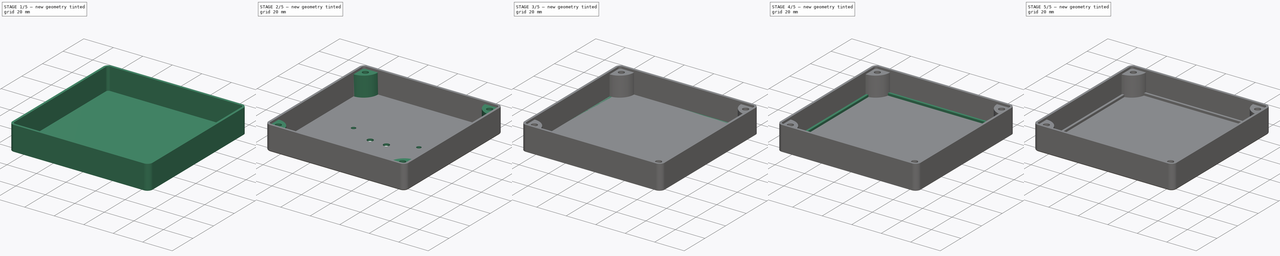
[diagram: build sequence overview — one tinted view per stage of 5, left to right]
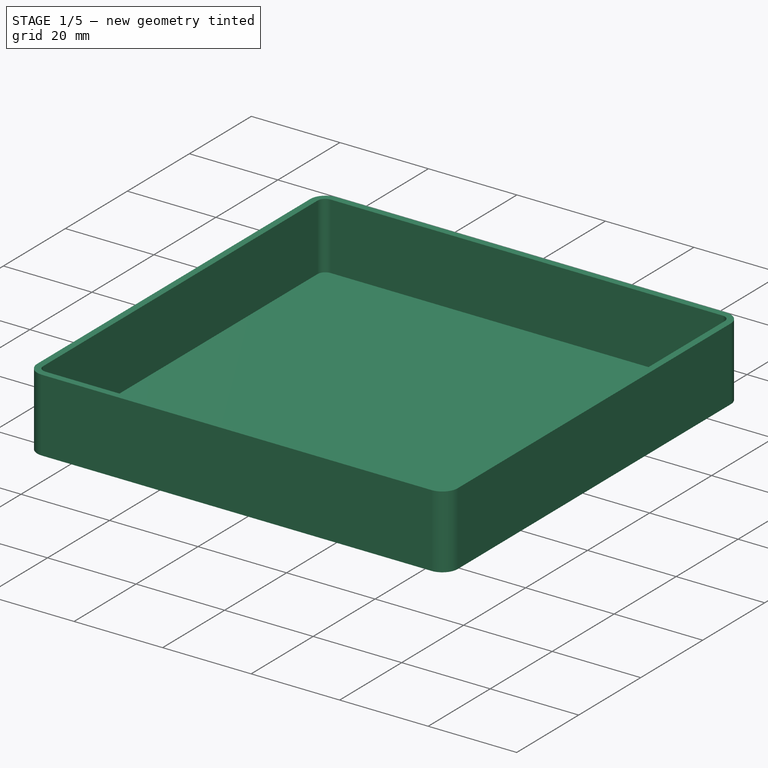
[diagram: stage 1 of 5 — iso view after this stage's code; geometry added in this stage tinted green]
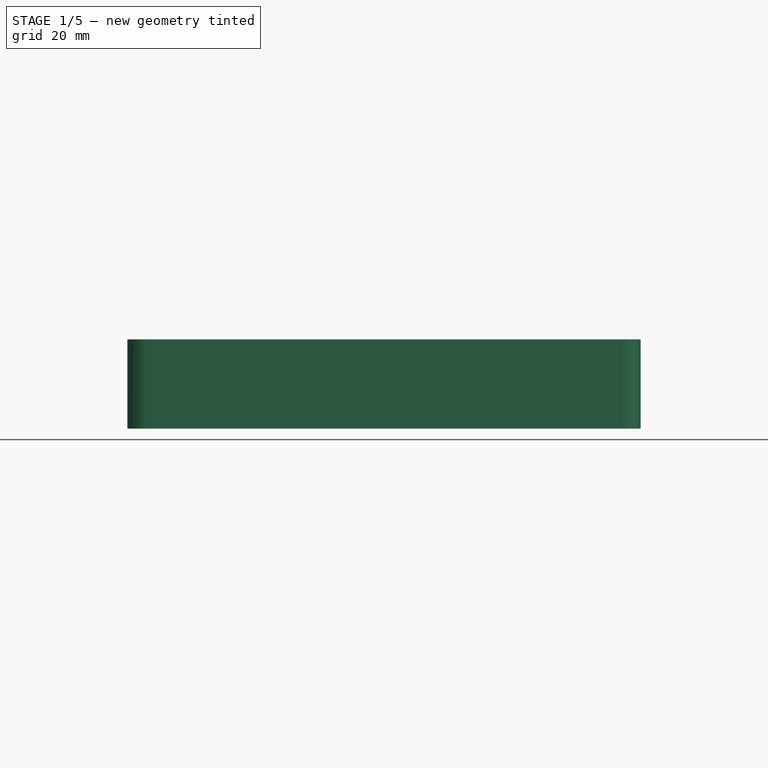
[diagram: stage 1 of 5 — front view after this stage's code; geometry added in this stage tinted green]
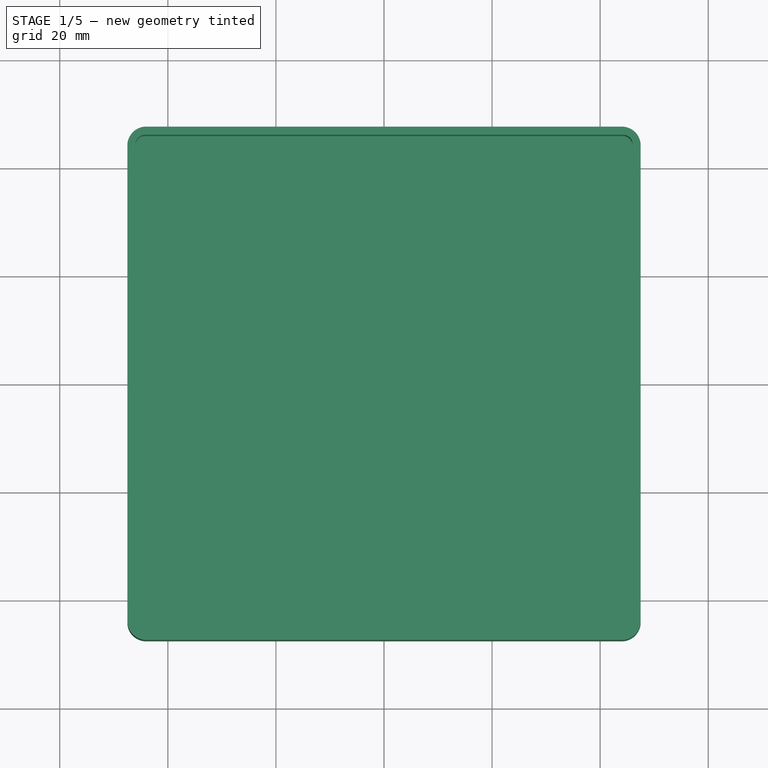
[diagram: stage 1 of 5 — top view after this stage's code; geometry added in this stage tinted green]
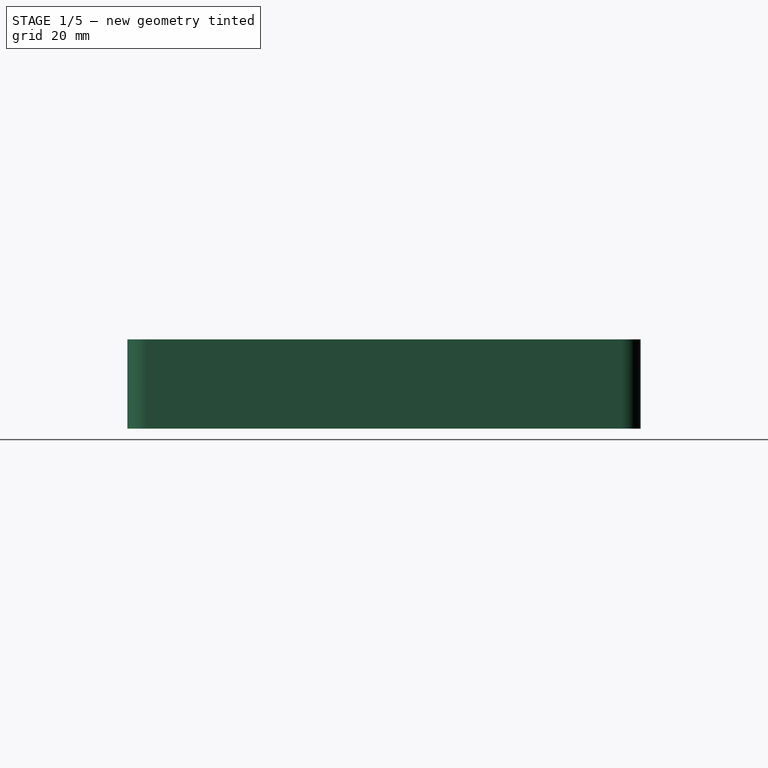
[diagram: stage 1 of 5 — right view after this stage's code; geometry added in this stage tinted green]
FCSTD DOCUMENT  (FreeCAD 1.0R39109 (Git))
Label: Key4_Base_Project_Box_Simple_New
License: All rights reserved
LicenseURL: http://en.wikipedia.org/wiki/All_rights_reserved
objects: Sketcher::SketchObject×11, PartDesign::Pad×7, PartDesign::Pocket×6, PartDesign::Mirrored×6, Part::Part2DObjectPython×4, PartDesign::MultiTransform×3, PartDesign::Body×3, PartDesign::Fillet×2, App::Part×2, Spreadsheet::Sheet×1, PartDesign::Chamfer×1
note: 95 computed .brp shape members not serialized (recipe doc carries the construction recipe); baked Part::Feature solids carry a one-line shape summary decoded from their .brp

FEATURE [Spreadsheet::Sheet] Spreadsheet  label="p"
  cells = A1='box_outer_width; B1(box_outer_width)=95; A2='box_outer_length; B2(box_outer_length)=95; A3='box_outer_depth; B3(box_outer_depth)=16.5; A5='box_inner_width; B5(box_inner_width)==B1 - B12 * 2; C5='Calculated; A6='box_inner_length; B6(box_inner_length)==B2 - B12 * 2; C6='Calculated; A7='box_inner_depth; B7(box_inner_depth)==B3 - B12; C7='Calculated; A9='box_outer_radius; B9(box_outer_radius)==B12 + 2; C9='Calculated; A10='box_inner_radius; B10(box_inner_radius)==B9 / 2; C10='Calculated; A12='box_wall_thickness; B12(box_wall_thickness)=1.5; A13='box_wall_clearance; B13(box_wall_clearance)==B12 * 0.2; C13='Calculated 20%; A15='lug_insert_diameter; B15(lug_insert_diameter)=3.9; A16='lug_depth; B16(lug_depth)==B7 - B12; A17='lug_outer_radius; B17(lug_outer_radius)==B15 * 2.5; A19='face_fillet; B19(face_fillet)=1; A21='lid_ridge_size; B21(lid_ridge_size)=1.5; A22='lid_screw_diameter; B22(lid_screw_diameter)=3; A23='lid_screw_chamfer; B23(lid_screw_chamfer)=1.98
FEATURE [Sketcher::SketchObject] Sketch  label="Main Body Sketch"
  ArcFitTolerance = 0
  AttachmentSupport = -> [XY_Plane001]
  FullyConstrained = true
  MakeInternals = false
  MapMode = 5
  expr: Constraints[16] = <<p>>.box_outer_radius
  expr: Constraints[17] = <<p>>.box_outer_width / 2
  expr: Constraints[18] = <<p>>.box_outer_length / 2
  sketch-geometry (8):
    g0: LineSegment StartX=-44 StartY=47.5 StartZ=0 EndX=44 EndY=47.5 EndZ=0
    g1: LineSegment StartX=47.5 StartY=44 StartZ=0 EndX=47.5 EndY=-44 EndZ=0
    g2: LineSegment StartX=44 StartY=-47.5 StartZ=0 EndX=-44 EndY=-47.5 EndZ=0
    g3: LineSegment StartX=-47.5 StartY=-44 StartZ=0 EndX=-47.5 EndY=44 EndZ=0
    g4: ArcOfCircle CenterX=-44 CenterY=44 CenterZ=0 NormalX=0 NormalY=0 NormalZ=1 AngleXU=0 Radius=3.5 StartAngle=1.5708 EndAngle=3.14159
    g5: ArcOfCircle CenterX=44 CenterY=44 CenterZ=0 NormalX=0 NormalY=0 NormalZ=1 AngleXU=0 Radius=3.5 StartAngle=1.877e-13 EndAngle=1.5708
    g6: ArcOfCircle CenterX=44 CenterY=-44 CenterZ=0 NormalX=0 NormalY=0 NormalZ=1 AngleXU=0 Radius=3.5 StartAngle=4.71239 EndAngle=6.28319
    g7: ArcOfCircle CenterX=-44 CenterY=-44 CenterZ=0 NormalX=0 NormalY=0 NormalZ=1 AngleXU=0 Radius=3.5 StartAngle=3.14159 EndAngle=4.71239
  constraints (19):
    c: Horizontal(g0)
    c: Horizontal(g2)
    c: Vertical(g1)
    c: Vertical(g3)
    c: Tangent(g3,g4) = 1.5708
    c: Tangent(g0,g4) = 1.5708
    c: Tangent(g0,g5) = 1.5708
    c: Tangent(g1,g5) = 1.5708
    c: Tangent(g1,g6) = 1.5708
    c: Tangent(g2,g6) = 1.5708
    c: Tangent(g2,g7) = 1.5708
    c: Tangent(g3,g7) = 1.5708
    c: Symmetric(g5,g7,g-1)
    c: Equal(g6,g7)
    c: Equal(g7,g4)
    c: Equal(g4,g5)
    c: Radius(g5) = 3.5
    c: DistanceX(g3,g-1) = 47.5
    c: DistanceY(g-1,g0) = 47.5
FEATURE [PartDesign::Pad] Pad  label="Box Outer Body"
  Direction = (0,0,1)
  Length = 16.5
  Length2 = 10
  Profile = -> Sketch
  ReferenceAxis = -> Sketch [N_Axis]
  Suppressed = false
  Type = 0
  expr: Length = <<p>>.box_outer_depth
FEATURE [Sketcher::SketchObject] Sketch001  label="Inner Body Sketch"
  ArcFitTolerance = 0
  AttachmentSupport = -> [Pad]
  FullyConstrained = true
  MakeInternals = false
  MapMode = 5
  Placement = pos=(0,0,16.5) rot=(0,0,1;0rad)
  expr: Constraints[16] = <<p>>.box_inner_width / 2
  expr: Constraints[17] = <<p>>.box_inner_length / 2
  expr: Constraints[18] = <<p>>.box_inner_radius
  sketch-geometry (8):
    g0: LineSegment StartX=-44.25 StartY=46 StartZ=0 EndX=44.25 EndY=46 EndZ=0
    g1: LineSegment StartX=46 StartY=44.25 StartZ=0 EndX=46 EndY=-44.25 EndZ=0
    g2: LineSegment StartX=44.25 StartY=-46 StartZ=0 EndX=-44.25 EndY=-46 EndZ=0
    g3: LineSegment StartX=-46 StartY=-44.25 StartZ=0 EndX=-46 EndY=44.25 EndZ=0
    g4: ArcOfCircle CenterX=-44.25 CenterY=44.25 CenterZ=0 NormalX=0 NormalY=0 NormalZ=1 AngleXU=0 Radius=1.75 StartAngle=1.5708 EndAngle=3.14159
    g5: ArcOfCircle CenterX=44.25 CenterY=44.25 CenterZ=0 NormalX=0 NormalY=0 NormalZ=1 AngleXU=0 Radius=1.75 StartAngle=5.5244e-12 EndAngle=1.5708
    g6: ArcOfCircle CenterX=44.25 CenterY=-44.25 CenterZ=0 NormalX=0 NormalY=0 NormalZ=1 AngleXU=0 Radius=1.75 StartAngle=4.71239 EndAngle=6.28319
    g7: ArcOfCircle CenterX=-44.25 CenterY=-44.25 CenterZ=0 NormalX=0 NormalY=0 NormalZ=1 AngleXU=0 Radius=1.75 StartAngle=3.14159 EndAngle=4.71239
  constraints (19):
    c: Horizontal(g0)
    c: Horizontal(g2)
    c: Vertical(g1)
    c: Vertical(g3)
    c: Tangent(g3,g4) = 1.5708
    c: Tangent(g0,g4) = 1.5708
    c: Tangent(g0,g5) = 1.5708
    c: Tangent(g1,g5) = 1.5708
    c: Tangent(g1,g6) = 1.5708
    c: Tangent(g2,g6) = 1.5708
    c: Tangent(g2,g7) = 1.5708
    c: Tangent(g3,g7) = 1.5708
    c: Equal(g4,g5)
    c: Equal(g5,g6)
    c: Equal(g6,g7)
    c: Symmetric(g5,g7,g-1)
    c: DistanceX(g3,g-1) = 46
    c: DistanceY(g-1,g0) = 46
    c: Radius(g5) = 1.75
FEATURE [PartDesign::Pocket] Pocket  label="Box Inner Pocket"
  BaseFeature = -> Pad
  Direction = (0,0,-1)
  Length = 15
  Length2 = 5
  Profile = -> Sketch001
  ReferenceAxis = -> Sketch001 [N_Axis]
  Suppressed = false
  Type = 0
  expr: Length = <<p>>.box_inner_depth
FEATURE [PartDesign::Body] Body  label="Main Box"
  AllowCompound = false
  Group = -> [Sketch,Pad,Sketch001,Pocket,Sketch002,Pad001,MultiTransform,Mirrored,Mirrored001,Fillet,Sketch008,Pocket003,Sketch009,Pocket004,Clone2D,Pocket005]
  Origin = -> Origin001
  Tip = -> Pocket005
FEATURE [App::Part] Part  label="Box"
  Group = -> [Body]
  Origin = -> Origin
FEATURE [Sketcher::SketchObject] Sketch010
  ArcFitTolerance = 1e-06
  AttachmentOffset = pos=(0,0,0.5) rot=(0,0,1;0rad)
  AttachmentSupport = -> [XY_Plane004]
  FullyConstrained = true
  MakeInternals = false
  MapMode = 5
  Placement = pos=(0,0,0.5) rot=(0,0,1;0rad)
  sketch-geometry (4):
    g0: LineSegment StartX=42.289 StartY=40.003 StartZ=0 EndX=-42.075 EndY=40.003 EndZ=0
    g1: LineSegment StartX=-42.075 StartY=40.003 StartZ=0 EndX=-42.075 EndY=13.495 EndZ=0
    g2: LineSegment StartX=-42.075 StartY=13.495 StartZ=0 EndX=42.289 EndY=13.495 EndZ=0
    g3: LineSegment StartX=42.289 StartY=13.495 StartZ=0 EndX=42.289 EndY=40.003 EndZ=0
  constraints (12):
    c: Coincident(g0,g1)
    c: Coincident(g1,g2)
    c: Coincident(g2,g3)
    c: Coincident(g3,g0)
    c: Horizontal(g0)
    c: Horizontal(g2)
    c: Vertical(g1)
    c: Vertical(g3)
    c: DistanceY(g3,g3) = 26.508
    c: DistanceX(g2,g2) = 84.364
    c: DistanceX(g-1,g2) = 42.289
    c: DistanceY(g-1,g2) = 13.495
FEATURE [PartDesign::Pad] Pad005
  Direction = (0,0,1)
  Length = 0.1
  Length2 = 10
  Profile = -> Sketch010
  ReferenceAxis = -> Sketch010 [N_Axis]
  Reversed = true
  Suppressed = false
  Type = 0
FEATURE [Part::Part2DObjectPython] ShapeString001  # Draft 2D object (typed FeaturePython)
  FontFile = <path>
  Fuse = false
  Justification = 4
  JustificationReference = 0
  KeepLeftMargin = false
  MakeFace = true
  ObliqueAngle = 0
  Placement = pos=(0,27,0) rot=(0,0,1;0rad)
  ScaleToSize = true
  Size = 24
  String = K7BIN
  Tracking = 0
FEATURE [Part::Part2DObjectPython] Clone2D001  label="ShapeString (2D)001"  # Draft 2D object (typed FeaturePython)
  Fuse = false
  Objects = -> [ShapeString001]
  Placement = pos=(0,27,0) rot=(0,0,1;0rad)
  Scale = (-1,1,1)
FEATURE [PartDesign::Pad] Pad006
  BaseFeature = -> Pad005
  Direction = (0,0,1)
  Length = 0.4
  Length2 = 10
  Profile = -> Clone2D001
  ReferenceAxis = -> Clone2D001 [N_Axis]
  Suppressed = false
  Type = 0
FEATURE [PartDesign::Body] Body002  label="K7BIN_Body"
  AllowCompound = false
  Group = -> [Sketch010,Pad005,Clone2D001,Pad006]
  Origin = -> Origin004
  Tip = -> Pad006
note: 2 file-system paths scrubbed to <path> (originals preserved in the JSON sidecar)
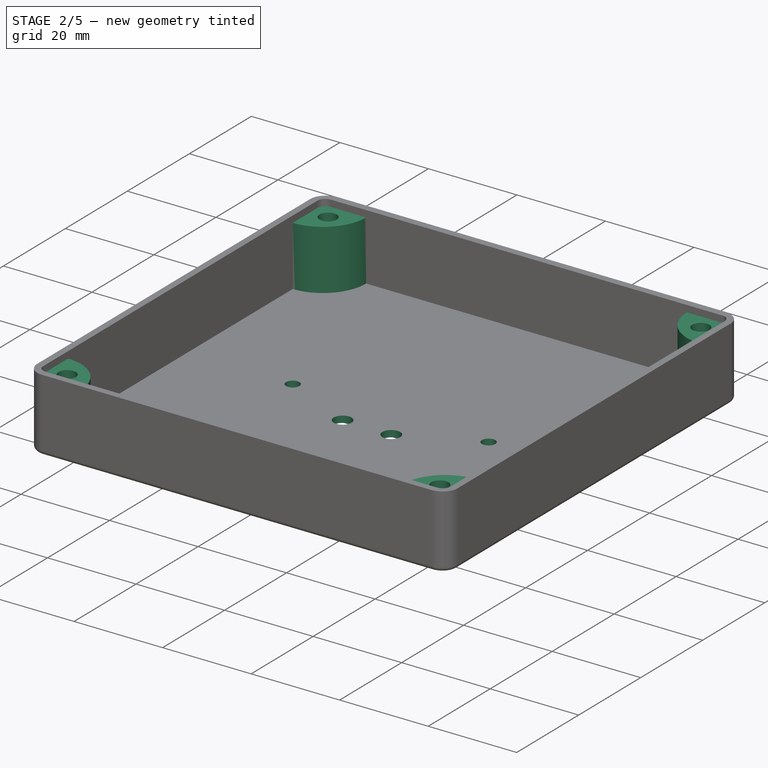
[diagram: stage 2 of 5 — iso view after this stage's code; geometry added in this stage tinted green]
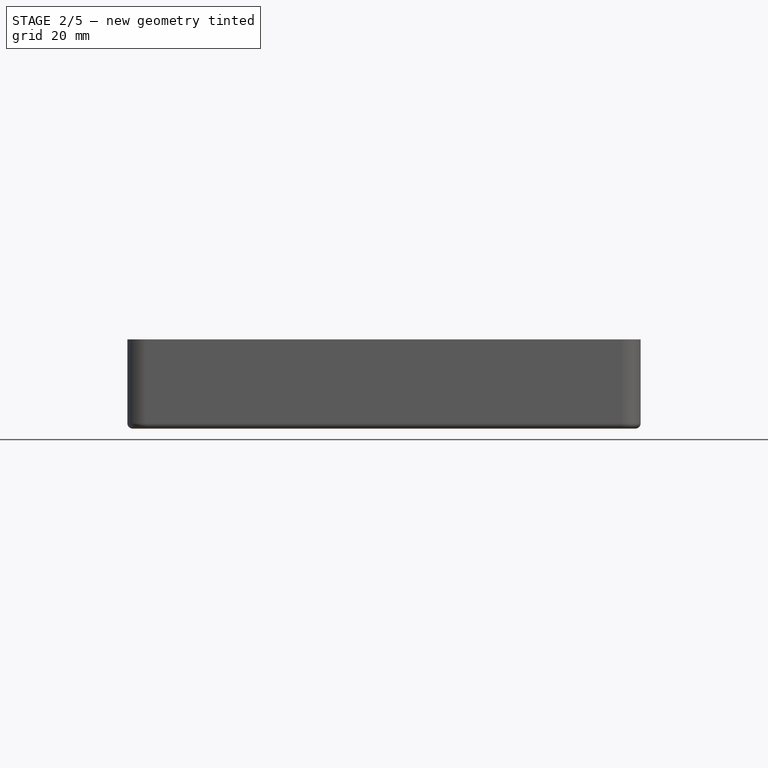
[diagram: stage 2 of 5 — front view after this stage's code; geometry added in this stage tinted green]
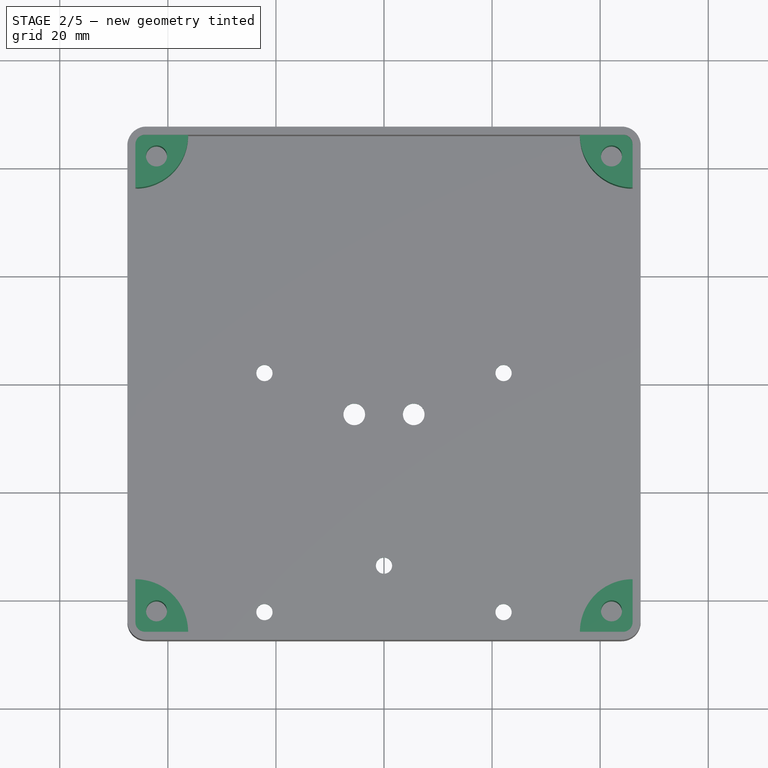
[diagram: stage 2 of 5 — top view after this stage's code; geometry added in this stage tinted green]
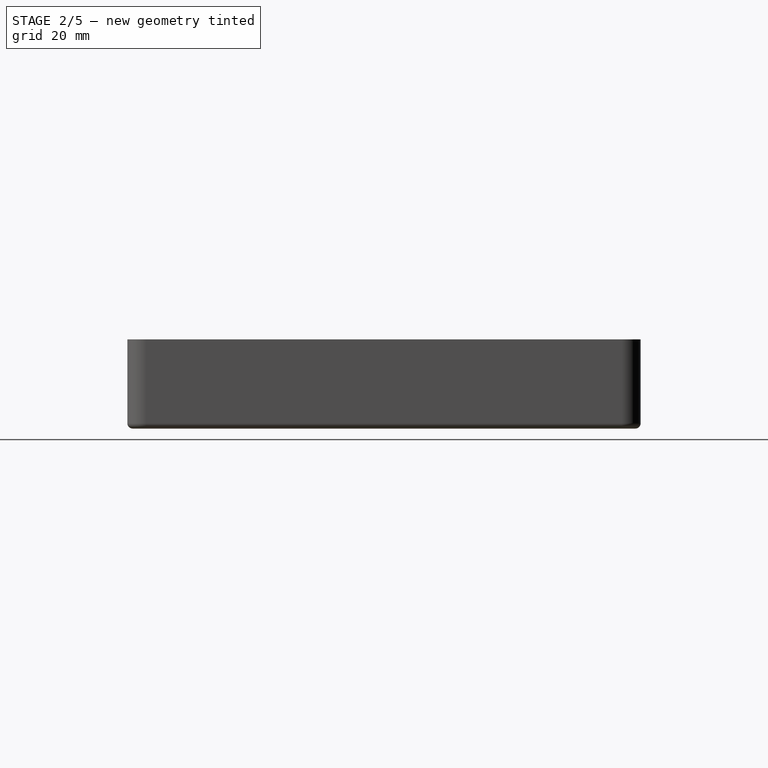
[diagram: stage 2 of 5 — right view after this stage's code; geometry added in this stage tinted green]
FEATURE [Sketcher::SketchObject] Sketch002  label="Lug Sketch"
  ArcFitTolerance = 0
  AttachmentSupport = -> [Pocket]
  FullyConstrained = true
  MakeInternals = false
  MapMode = 5
  Placement = pos=(0,0,1.5) rot=(0,0,1;0rad)
  expr: Constraints[10] = <<p>>.lug_insert_diameter
  expr: Constraints[11] = <<p>>.lug_insert_diameter
  expr: Constraints[6] = <<p>>.lug_outer_radius
  expr: Constraints[7] = <<p>>.box_inner_width / 2
  expr: Constraints[8] = <<p>>.box_inner_length / 2
  expr: Constraints[9] = <<p>>.lug_insert_diameter
  sketch-geometry (4):
    g0: LineSegment StartX=-46 StartY=36.25 StartZ=0 EndX=-46 EndY=46 EndZ=0
    g1: LineSegment StartX=-46 StartY=46 StartZ=0 EndX=-36.25 EndY=46 EndZ=0
    g2: ArcOfCircle CenterX=-46 CenterY=46 CenterZ=0 NormalX=0 NormalY=0 NormalZ=1 AngleXU=0 Radius=9.75 StartAngle=4.71239 EndAngle=6.28319
    g3: Circle CenterX=-42.1 CenterY=42.1 CenterZ=0 NormalX=0 NormalY=0 NormalZ=1 AngleXU=0 Radius=1.95
  constraints (12):
    c: Vertical(g0)
    c: Coincident(g0,g1)
    c: Horizontal(g1)
    c: Coincident(g2,g0)
    c: Coincident(g2,g1)
    c: Coincident(g2,g0)
    c: Radius(g2) = 9.75
    c: DistanceX(g0,g-1) = 46
    c: DistanceY(g-1,g0) = 46
    c: Diameter(g3) = 3.9
    c: DistanceX(g0,g3) = 3.9
    c: DistanceY(g3,g0) = 3.9
FEATURE [PartDesign::Pad] Pad001  label="Lug"
  BaseFeature = -> Pocket
  Direction = (0,0,1)
  Length = 13.5
  Length2 = 10
  Profile = -> Sketch002
  ReferenceAxis = -> Sketch002 [N_Axis]
  Suppressed = false
  Type = 0
  expr: Length = <<p>>.lug_depth
FEATURE [PartDesign::Mirrored] Mirrored
  MirrorPlane = -> Sketch002 [V_Axis]
  Suppressed = false
  TransformMode = 0
FEATURE [PartDesign::Mirrored] Mirrored001
  MirrorPlane = -> Sketch002 [H_Axis]
  Suppressed = false
  TransformMode = 0
FEATURE [PartDesign::MultiTransform] MultiTransform  label="Lugs Mirror"
  BaseFeature = -> Pad001
  Originals = -> [Pad001]
  Suppressed = false
  TransformMode = 0
  Transformations = -> [Mirrored,Mirrored001]
FEATURE [PartDesign::Fillet] Fillet
  Base = -> MultiTransform [Edge3,Edge9,Edge11,Edge12,Edge13,Edge14,Edge15,Edge6]
  BaseFeature = -> MultiTransform
  Radius = 1
  SupportTransform = false
  Suppressed = false
  UseAllEdges = false
  expr: Radius = Spreadsheet.face_fillet
FEATURE [PartDesign::Body] Body001  label="Main Lid"
  AllowCompound = false
  Group = -> [Sketch003,Pad002,Sketch004,Pad003,Sketch005,Pocket001,Sketch006,Pad004,MultiTransform001,Mirrored002,Mirrored003,Sketch007,Pocket002,MultiTransform002,Mirrored004,Mirrored005,Fillet001,Chamfer]
  Origin = -> Origin003
  Tip = -> Chamfer
FEATURE [App::Part] Part001  label="Lid"
  Group = -> [Body001]
  Origin = -> Origin002
FEATURE [Sketcher::SketchObject] Sketch008
  ArcFitTolerance = 0
  AttachmentSupport = -> [Fillet]
  FullyConstrained = true
  MakeInternals = false
  MapMode = 5
  Placement = pos=(0,0,1.5) rot=(0,0,1;0rad)
  expr: Constraints[20] = <<p>>.box_outer_length / 2 - 5.4
  expr: Constraints[7] = <<p>>.box_outer_width / 2 - 42
  expr: Constraints[8] = <<p>>.box_outer_width / 2 - 14
  sketch-geometry (7):
    g0: Circle CenterX=0 CenterY=-33.5 CenterZ=0 NormalX=0 NormalY=0 NormalZ=1 AngleXU=0 Radius=1.5
    g1: Circle CenterX=-5.5 CenterY=-5.5 CenterZ=0 NormalX=0 NormalY=0 NormalZ=1 AngleXU=0 Radius=2
    g2: Circle CenterX=5.5 CenterY=-5.5 CenterZ=0 NormalX=0 NormalY=0 NormalZ=1 AngleXU=0 Radius=2
    g3: Circle CenterX=-22.125 CenterY=2.15 CenterZ=0 NormalX=0 NormalY=0 NormalZ=1 AngleXU=0 Radius=1.5
    g4: Circle CenterX=-22.125 CenterY=-42.1 CenterZ=0 NormalX=0 NormalY=0 NormalZ=1 AngleXU=0 Radius=1.5
    g5: Circle CenterX=22.125 CenterY=-42.1 CenterZ=0 NormalX=0 NormalY=0 NormalZ=1 AngleXU=0 Radius=1.5
    g6: Circle CenterX=22.125 CenterY=2.15 CenterZ=0 NormalX=0 NormalY=0 NormalZ=1 AngleXU=0 Radius=1.5
  constraints (21):
    c: PointOnObject(g0,g-2)
    c: DistanceX(g1,g2) = 11
    c: DistanceX(g1,g-1) = 5.5
    c: Diameter(g2) = 4
    c: Diameter(g1) = 4
    c: Diameter(g0) = 3
    c: DistanceY(g1,g2) = 0
    c: DistanceY(g2,g-1) = 5.5
    c: DistanceY(g0,g-1) = 33.5
    c: Equal(g3,g6)
    c: Equal(g3,g5)
    c: Equal(g3,g4)
    c: Diameter(g3) = 3
    c: DistanceY(g3,g6) = 0
    c: DistanceY(g5,g4) = 0
    c: DistanceX(g6,g5) = 0
    c: DistanceX(g3,g4) = 0
    c: DistanceX(g3,g6) = 44.25
    c: DistanceY(g4,g3) = 44.25
    c: DistanceX(g3,g-1) = 22.125
    c: DistanceY(g4,g-1) = 42.1
FEATURE [PartDesign::Pocket] Pocket003
  BaseFeature = -> Fillet
  Direction = (0,0,-1)
  Length = 5
  Length2 = 5
  Profile = -> Sketch008
  ReferenceAxis = -> Sketch008 [N_Axis]
  Suppressed = false
  Type = 0
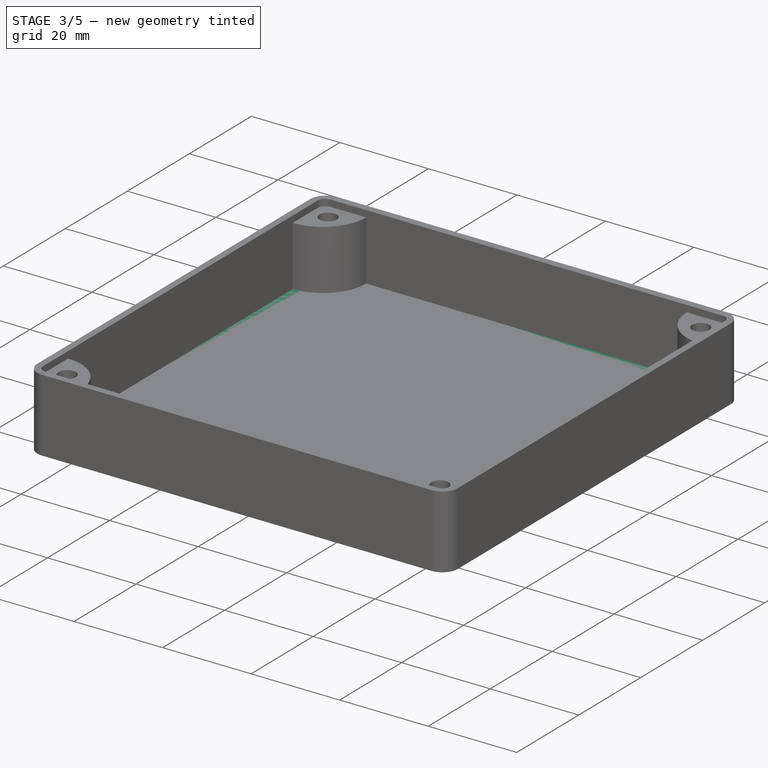
[diagram: stage 3 of 5 — iso view after this stage's code; geometry added in this stage tinted green]
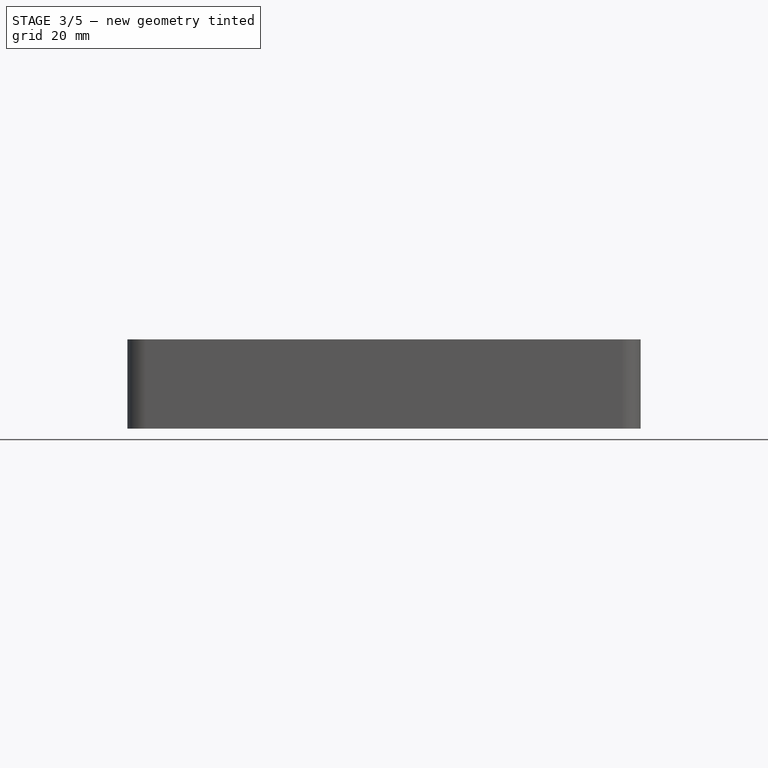
[diagram: stage 3 of 5 — front view after this stage's code; geometry added in this stage tinted green]
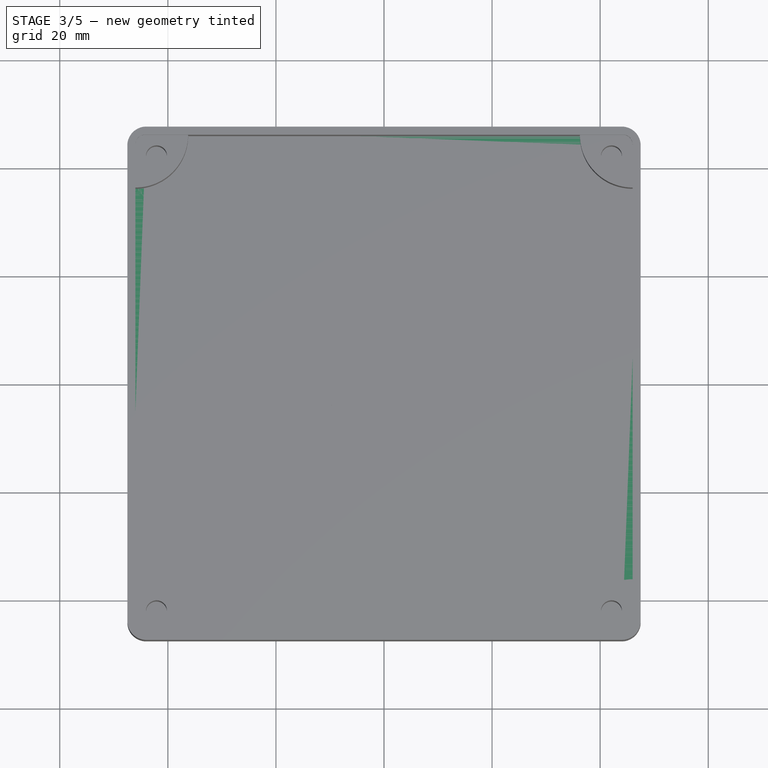
[diagram: stage 3 of 5 — top view after this stage's code; geometry added in this stage tinted green]
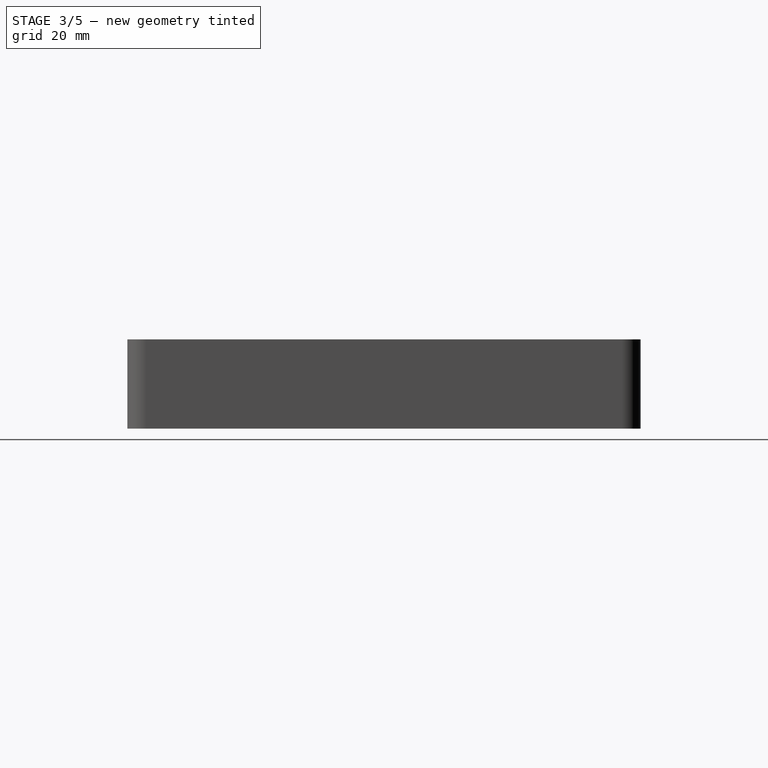
[diagram: stage 3 of 5 — right view after this stage's code; geometry added in this stage tinted green]
FEATURE [Sketcher::SketchObject] Sketch003  label="Main Lid Sketch"
  ArcFitTolerance = 0
  AttachmentSupport = -> [XY_Plane003]
  FullyConstrained = true
  MakeInternals = false
  MapMode = 5
  expr: Constraints[15] = <<p>>.box_outer_radius
  expr: Constraints[17] = <<p>>.box_outer_length / 2
  expr: Constraints[18] = <<p>>.box_outer_width / 2
  sketch-geometry (8):
    g0: LineSegment StartX=-44 StartY=47.5 StartZ=0 EndX=44 EndY=47.5 EndZ=0
    g1: LineSegment StartX=47.5 StartY=44 StartZ=0 EndX=47.5 EndY=-44 EndZ=0
    g2: LineSegment StartX=44 StartY=-47.5 StartZ=0 EndX=-44 EndY=-47.5 EndZ=0
    g3: LineSegment StartX=-47.5 StartY=-44 StartZ=0 EndX=-47.5 EndY=44 EndZ=0
    g4: ArcOfCircle CenterX=-44 CenterY=44 CenterZ=0 NormalX=0 NormalY=0 NormalZ=1 AngleXU=0 Radius=3.5 StartAngle=1.5708 EndAngle=3.14159
    g5: ArcOfCircle CenterX=44 CenterY=44 CenterZ=0 NormalX=0 NormalY=0 NormalZ=1 AngleXU=0 Radius=3.5 StartAngle=2.464e-13 EndAngle=1.5708
    g6: ArcOfCircle CenterX=44 CenterY=-44 CenterZ=0 NormalX=0 NormalY=0 NormalZ=1 AngleXU=0 Radius=3.5 StartAngle=4.71239 EndAngle=6.28319
    g7: ArcOfCircle CenterX=-44 CenterY=-44 CenterZ=0 NormalX=0 NormalY=0 NormalZ=1 AngleXU=0 Radius=3.5 StartAngle=3.14159 EndAngle=4.71239
  constraints (19):
    c: Horizontal(g0)
    c: Horizontal(g2)
    c: Vertical(g1)
    c: Vertical(g3)
    c: Tangent(g0,g4) = 1.5708
    c: Tangent(g3,g4) = 1.5708
    c: Tangent(g0,g5) = 1.5708
    c: Tangent(g1,g5) = 1.5708
    c: Tangent(g1,g6) = 1.5708
    c: Tangent(g2,g6) = 1.5708
    c: Tangent(g2,g7) = 1.5708
    c: Tangent(g3,g7) = 1.5708
    c: Equal(g4,g5)
    c: Equal(g5,g6)
    c: Equal(g6,g7)
    c: Radius(g5) = 3.5
    c: Symmetric(g4,g6,g-1)
    c: DistanceY(g-1,g0) = 47.5
    c: DistanceX(g3,g-1) = 47.5
FEATURE [PartDesign::Pad] Pad002  label="Main Outer Lid"
  Direction = (0,0,1)
  Length = 1.5
  Length2 = 10
  Profile = -> Sketch003
  ReferenceAxis = -> Sketch003 [N_Axis]
  Suppressed = false
  Type = 0
  expr: Length = <<p>>.box_wall_thickness
FEATURE [Sketcher::SketchObject] Sketch009
  ArcFitTolerance = 0
  AttachmentSupport = -> [Pocket003]
  FullyConstrained = true
  MakeInternals = false
  MapMode = 5
  Placement = pos=(0,0,1.5) rot=(0,0,1;0rad)
  expr: Constraints[5] = <<p>>.box_outer_length / 2 - 42
  sketch-geometry (2):
    g0: Circle CenterX=-5.5 CenterY=-5.5 CenterZ=0 NormalX=0 NormalY=0 NormalZ=1 AngleXU=0 Radius=4.5
    g1: Circle CenterX=5.5 CenterY=-5.5 CenterZ=0 NormalX=0 NormalY=0 NormalZ=1 AngleXU=0 Radius=4.5
  constraints (6):
    c: Equal(g1,g0)
    c: Diameter(g1) = 9
    c: DistanceY(g0,g1) = 0
    c: DistanceX(g0,g1) = 11
    c: DistanceX(g0,g-1) = 5.5
    c: DistanceY(g0,g-1) = 5.5
FEATURE [PartDesign::Pocket] Pocket004
  BaseFeature = -> Pocket003
  Direction = (0,0,-1)
  Length = 0.75
  Length2 = 5
  Profile = -> Sketch009
  ReferenceAxis = -> Sketch009 [N_Axis]
  Suppressed = false
  Type = 0
FEATURE [Part::Part2DObjectPython] ShapeString  # Draft 2D object (typed FeaturePython)
  FontFile = <path>
  Fuse = false
  Justification = 4
  JustificationReference = 0
  KeepLeftMargin = false
  MakeFace = true
  ObliqueAngle = 0
  Placement = pos=(0,27,0) rot=(0,0,1;0rad)
  ScaleToSize = true
  Size = 24
  String = K7BIN
  Tracking = 0
FEATURE [Part::Part2DObjectPython] Clone2D  label="ShapeString (2D)"  # Draft 2D object (typed FeaturePython)
  Fuse = false
  Objects = -> [ShapeString]
  Placement = pos=(0,27,0) rot=(0,0,1;0rad)
  Scale = (-1,1,1)
FEATURE [PartDesign::Pocket] Pocket005
  BaseFeature = -> Pocket004
  Direction = (0,0,-1)
  Length = 0.5
  Length2 = 5
  Profile = -> Clone2D
  ReferenceAxis = -> Clone2D [N_Axis]
  Reversed = true
  Suppressed = false
  Type = 0
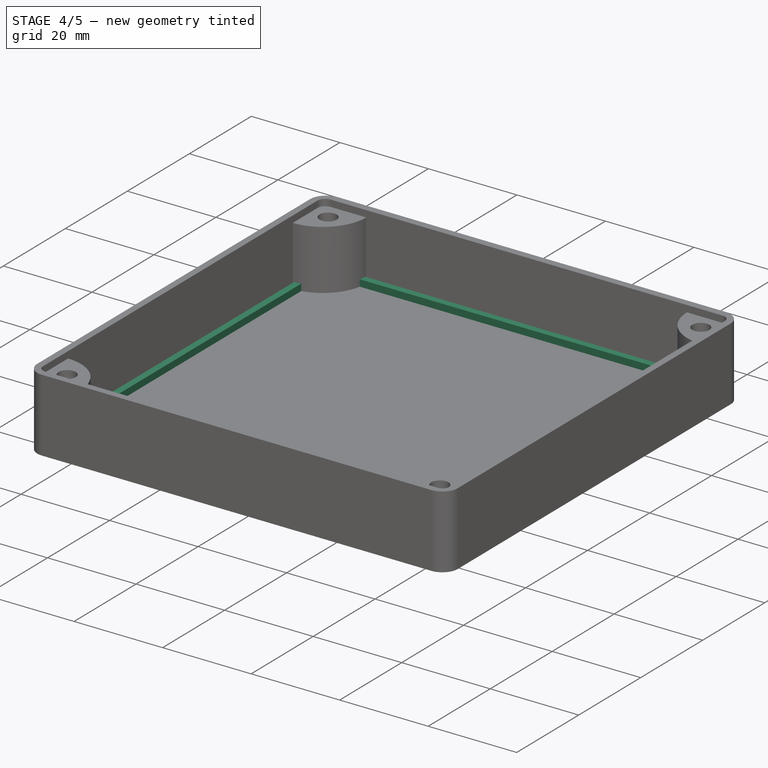
[diagram: stage 4 of 5 — iso view after this stage's code; geometry added in this stage tinted green]
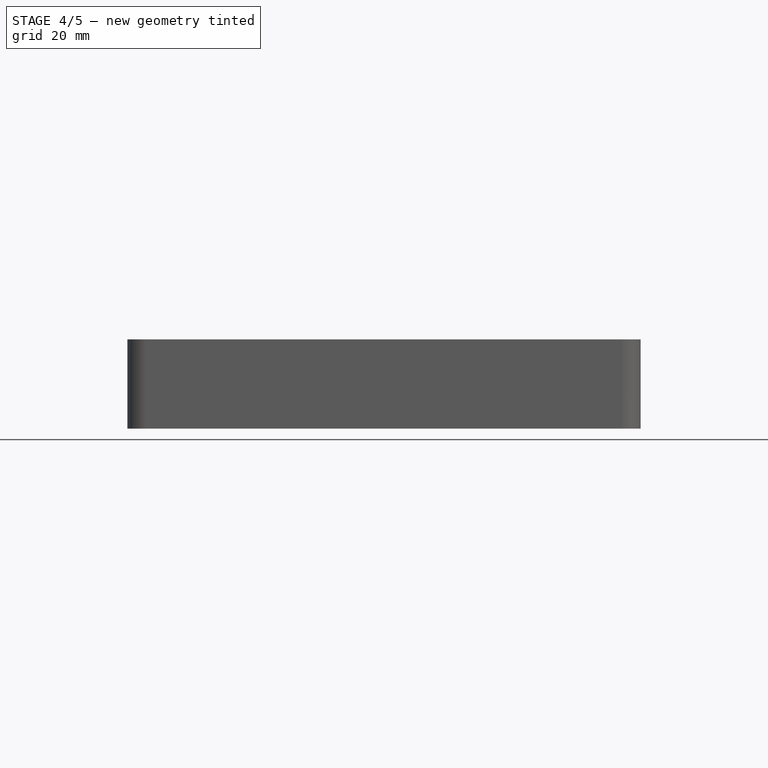
[diagram: stage 4 of 5 — front view after this stage's code; geometry added in this stage tinted green]
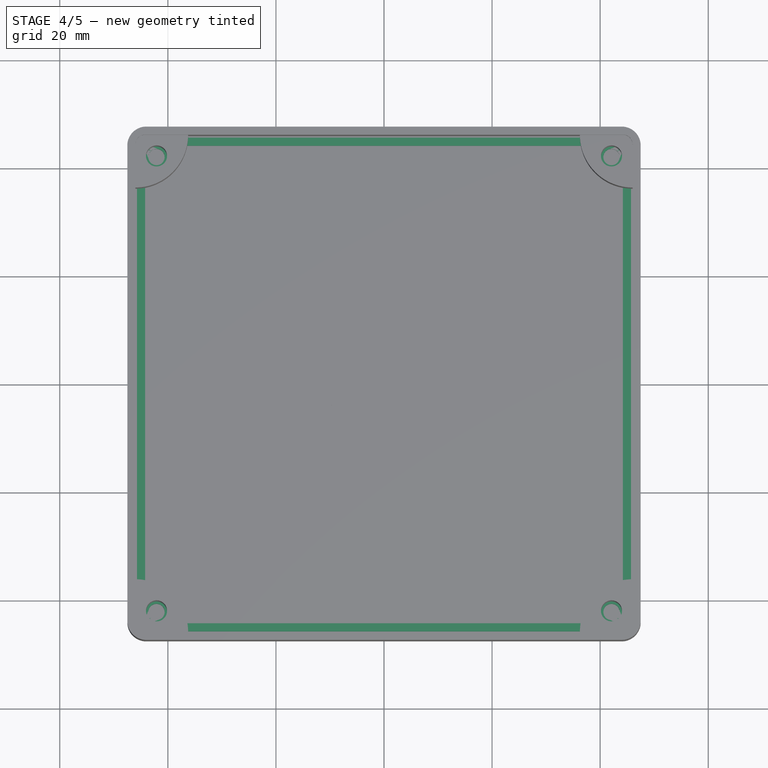
[diagram: stage 4 of 5 — top view after this stage's code; geometry added in this stage tinted green]
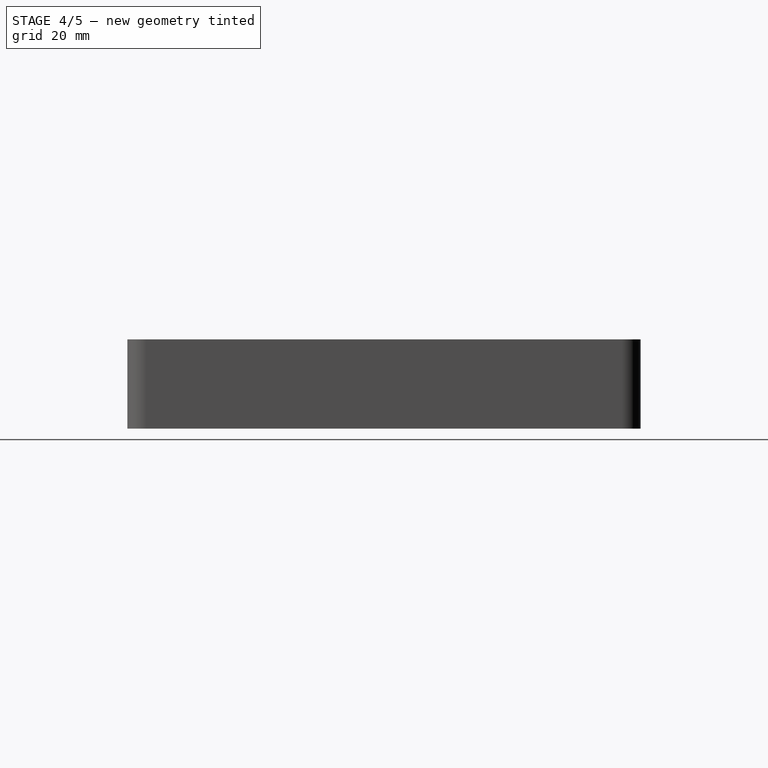
[diagram: stage 4 of 5 — right view after this stage's code; geometry added in this stage tinted green]
FEATURE [Sketcher::SketchObject] Sketch004  label="Main Inner Ring Sketch"
  ArcFitTolerance = 0
  AttachmentSupport = -> [Pad002]
  FullyConstrained = true
  MakeInternals = false
  MapMode = 5
  Placement = pos=(0,0,1.5) rot=(0,0,1;0rad)
  expr: Constraints[15] = <<p>>.box_inner_radius
  expr: Constraints[17] = <<p>>.box_inner_width / 2 - <<p>>.box_wall_clearance
  expr: Constraints[18] = <<p>>.box_inner_length / 2 - <<p>>.box_wall_clearance
  sketch-geometry (8):
    g0: LineSegment StartX=-43.95 StartY=45.7 StartZ=0 EndX=43.95 EndY=45.7 EndZ=0
    g1: LineSegment StartX=45.7 StartY=43.95 StartZ=0 EndX=45.7 EndY=-43.95 EndZ=0
    g2: LineSegment StartX=43.95 StartY=-45.7 StartZ=0 EndX=-43.95 EndY=-45.7 EndZ=0
    g3: LineSegment StartX=-45.7 StartY=-43.95 StartZ=0 EndX=-45.7 EndY=43.95 EndZ=0
    g4: ArcOfCircle CenterX=-43.95 CenterY=43.95 CenterZ=0 NormalX=0 NormalY=0 NormalZ=1 AngleXU=0 Radius=1.75 StartAngle=1.5708 EndAngle=3.14159
    g5: ArcOfCircle CenterX=43.95 CenterY=43.95 CenterZ=0 NormalX=0 NormalY=0 NormalZ=1 AngleXU=0 Radius=1.75 StartAngle=5.8636e-12 EndAngle=1.5708
    g6: ArcOfCircle CenterX=43.95 CenterY=-43.95 CenterZ=0 NormalX=0 NormalY=0 NormalZ=1 AngleXU=0 Radius=1.75 StartAngle=4.71239 EndAngle=6.28319
    g7: ArcOfCircle CenterX=-43.95 CenterY=-43.95 CenterZ=0 NormalX=0 NormalY=0 NormalZ=1 AngleXU=0 Radius=1.75 StartAngle=3.14159 EndAngle=4.71239
  constraints (19):
    c: Horizontal(g0)
    c: Horizontal(g2)
    c: Vertical(g1)
    c: Vertical(g3)
    c: Tangent(g3,g4) = 1.5708
    c: Tangent(g0,g4) = 1.5708
    c: Tangent(g0,g5) = 1.5708
    c: Tangent(g1,g5) = 1.5708
    c: Tangent(g1,g6) = 1.5708
    c: Tangent(g2,g6) = 1.5708
    c: Tangent(g2,g7) = 1.5708
    c: Tangent(g3,g7) = 1.5708
    c: Equal(g4,g5)
    c: Equal(g5,g6)
    c: Equal(g6,g7)
    c: Radius(g5) = 1.75
    c: Symmetric(g4,g6,g-1)
    c: DistanceX(g3,g-1) = 45.7
    c: DistanceY(g-1,g0) = 45.7
FEATURE [PartDesign::Pad] Pad003  label="Main Inner Ring"
  BaseFeature = -> Pad002
  Direction = (0,0,1)
  Length = 1.5
  Length2 = 10
  Profile = -> Sketch004
  ReferenceAxis = -> Sketch004 [N_Axis]
  Suppressed = false
  Type = 0
  expr: Length = Spreadsheet.lid_ridge_size
FEATURE [Sketcher::SketchObject] Sketch005  label="Main Ring Pocket Sketch"
  ArcFitTolerance = 0
  AttachmentSupport = -> [Pad003]
  FullyConstrained = true
  MakeInternals = false
  MapMode = 5
  Placement = pos=(0,0,3) rot=(0,0,1;0rad)
  expr: Constraints[15] = <<p>>.box_inner_radius / 2
  expr: Constraints[17] = <<p>>.box_inner_length / 2 - <<p>>.box_wall_clearance - Spreadsheet.lid_ridge_size
  expr: Constraints[18] = <<p>>.box_inner_width / 2 - <<p>>.box_wall_clearance - Spreadsheet.lid_ridge_size
  sketch-geometry (8):
    g0: LineSegment StartX=-43.325 StartY=44.2 StartZ=0 EndX=43.325 EndY=44.2 EndZ=0
    g1: LineSegment StartX=44.2 StartY=43.325 StartZ=0 EndX=44.2 EndY=-43.325 EndZ=0
    g2: LineSegment StartX=43.325 StartY=-44.2 StartZ=0 EndX=-43.325 EndY=-44.2 EndZ=0
    g3: LineSegment StartX=-44.2 StartY=-43.325 StartZ=0 EndX=-44.2 EndY=43.325 EndZ=0
    g4: ArcOfCircle CenterX=-43.325 CenterY=43.325 CenterZ=0 NormalX=0 NormalY=0 NormalZ=1 AngleXU=0 Radius=0.875 StartAngle=1.5708 EndAngle=3.14159
    g5: ArcOfCircle CenterX=43.325 CenterY=43.325 CenterZ=0 NormalX=0 NormalY=0 NormalZ=1 AngleXU=0 Radius=0.875 StartAngle=-9e-16 EndAngle=1.5708
    g6: ArcOfCircle CenterX=43.325 CenterY=-43.325 CenterZ=0 NormalX=0 NormalY=0 NormalZ=1 AngleXU=0 Radius=0.875 StartAngle=4.71239 EndAngle=6.28319
    g7: ArcOfCircle CenterX=-43.325 CenterY=-43.325 CenterZ=0 NormalX=0 NormalY=0 NormalZ=1 AngleXU=0 Radius=0.875 StartAngle=3.14159 EndAngle=4.71239
  constraints (19):
    c: Horizontal(g0)
    c: Horizontal(g2)
    c: Vertical(g1)
    c: Vertical(g3)
    c: Tangent(g3,g4) = 1.5708
    c: Tangent(g0,g4) = 1.5708
    c: Tangent(g0,g5) = 1.5708
    c: Tangent(g1,g5) = 1.5708
    c: Tangent(g1,g6) = 1.5708
    c: Tangent(g2,g6) = 1.5708
    c: Tangent(g2,g7) = 1.5708
    c: Tangent(g3,g7) = 1.5708
    c: Equal(g4,g5)
    c: Equal(g5,g6)
    c: Equal(g6,g7)
    c: Radius(g5) = 0.875
    c: Symmetric(g4,g6,g-1)
    c: DistanceY(g-1,g0) = 44.2
    c: DistanceX(g3,g-1) = 44.2
FEATURE [PartDesign::Pocket] Pocket001  label="Main Ring Pocket"
  BaseFeature = -> Pad003
  Direction = (0,0,-1)
  Length = 1.5
  Length2 = 5
  Profile = -> Sketch005
  ReferenceAxis = -> Sketch005 [N_Axis]
  Suppressed = false
  Type = 0
  expr: Length = <<p>>.lid_ridge_size
FEATURE [Sketcher::SketchObject] Sketch006  label="Main Ring Lug Sketch"
  ArcFitTolerance = 0
  AttachmentSupport = -> [Pocket001]
  FullyConstrained = true
  MakeInternals = false
  MapMode = 5
  Placement = pos=(0,0,1.5) rot=(0,0,1;0rad)
  expr: Constraints[0] = <<p>>.lid_screw_diameter
  expr: Constraints[10] = <<p>>.box_inner_width / 2 - <<p>>.box_inner_width / 2 - <<p>>.lid_ridge_size + <<p>>.lug_insert_diameter
  expr: Constraints[11] = <<p>>.box_inner_length / 2 - <<p>>.box_inner_length / 2 - <<p>>.lid_ridge_size + <<p>>.lug_insert_diameter
  expr: Constraints[7] = <<p>>.lid_screw_diameter * 2.5
  expr: Constraints[8] = <<p>>.box_inner_length / 2 - <<p>>.lid_ridge_size
  expr: Constraints[9] = <<p>>.box_inner_width / 2 - <<p>>.lid_ridge_size
  sketch-geometry (4):
    g0: Circle CenterX=-42.1 CenterY=42.1 CenterZ=0 NormalX=0 NormalY=0 NormalZ=1 AngleXU=0 Radius=1.5
    g1: LineSegment StartX=-44.5 StartY=37 StartZ=0 EndX=-44.5 EndY=44.5 EndZ=0
    g2: LineSegment StartX=-44.5 StartY=44.5 StartZ=0 EndX=-37 EndY=44.5 EndZ=0
    g3: ArcOfCircle CenterX=-44.5 CenterY=44.5 CenterZ=0 NormalX=0 NormalY=0 NormalZ=1 AngleXU=0 Radius=7.5 StartAngle=4.71239 EndAngle=6.28319
  constraints (12):
    c: Diameter(g0) = 3
    c: Vertical(g1)
    c: Coincident(g1,g2)
    c: Horizontal(g2)
    c: Coincident(g3,g1)
    c: Coincident(g3,g2)
    c: Coincident(g3,g1)
    c: Radius(g3) = 7.5
    c: DistanceY(g-1,g1) = 44.5
    c: DistanceX(g1,g-1) = 44.5
    c: DistanceX(g1,g0) = 2.4
    c: DistanceY(g0,g1) = 2.4
FEATURE [PartDesign::Pad] Pad004  label="Main Ring Lug"
  BaseFeature = -> Pocket001
  Direction = (0,0,1)
  Length = 1.5
  Length2 = 10
  Profile = -> Sketch006
  ReferenceAxis = -> Sketch006 [N_Axis]
  Suppressed = false
  Type = 0
  expr: Length = <<p>>.lid_ridge_size
FEATURE [PartDesign::Mirrored] Mirrored002
  MirrorPlane = -> Sketch006 [V_Axis]
  Suppressed = false
  TransformMode = 0
FEATURE [PartDesign::Mirrored] Mirrored003
  MirrorPlane = -> Sketch006 [H_Axis]
  Suppressed = false
  TransformMode = 0
FEATURE [PartDesign::MultiTransform] MultiTransform001  label="Ring Lugs Mirror"
  BaseFeature = -> Pad004
  Originals = -> [Pad004]
  Suppressed = false
  TransformMode = 0
  Transformations = -> [Mirrored002,Mirrored003]
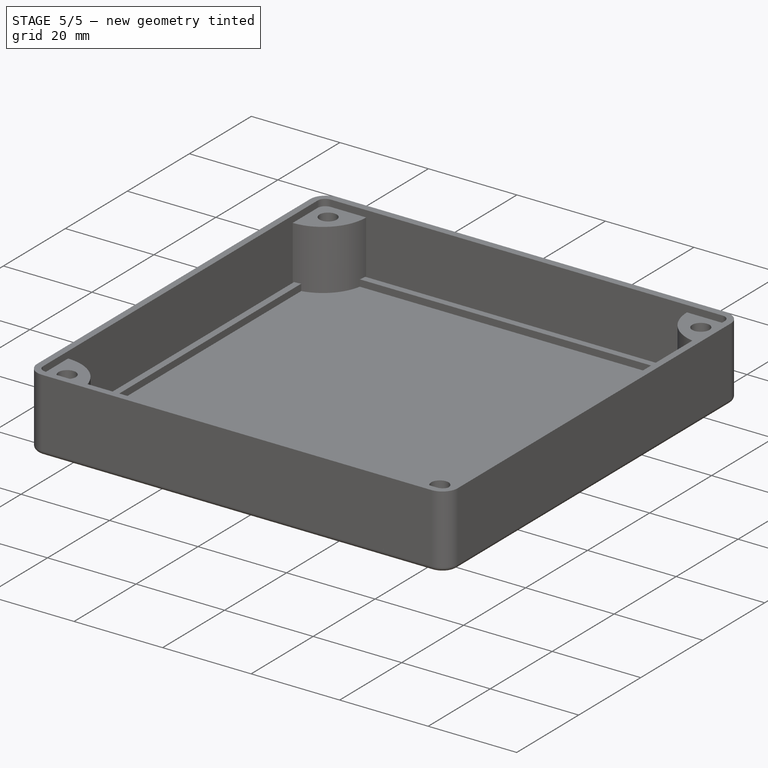
[diagram: stage 5 of 5 — iso view after this stage's code; geometry added in this stage tinted green]
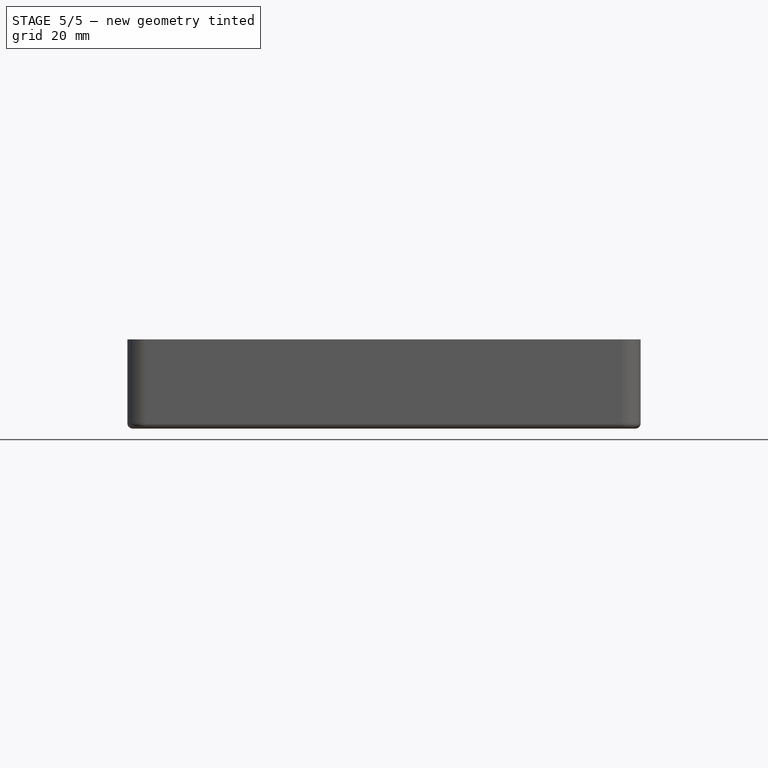
[diagram: stage 5 of 5 — front view after this stage's code; geometry added in this stage tinted green]
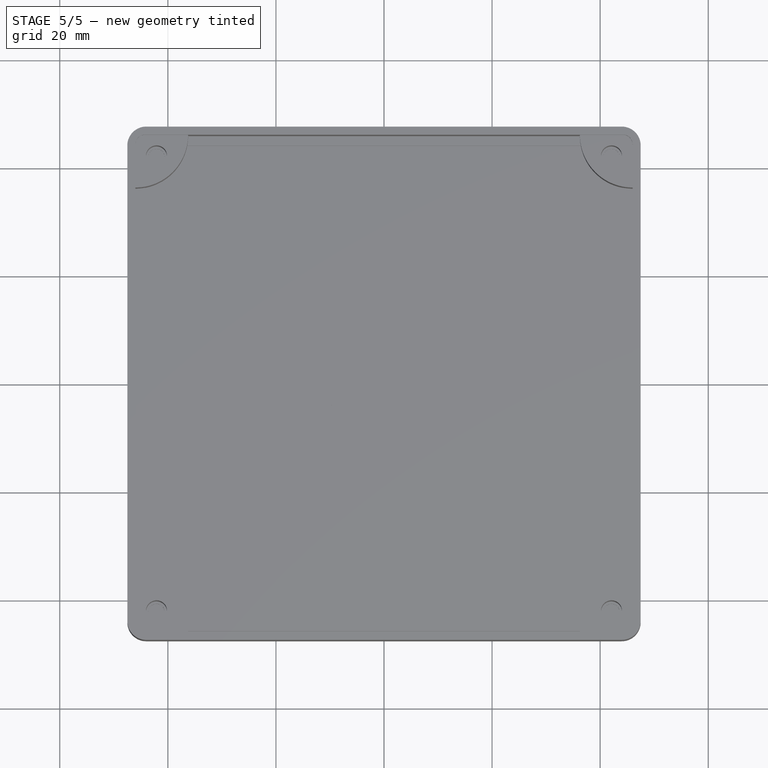
[diagram: stage 5 of 5 — top view after this stage's code; geometry added in this stage tinted green]
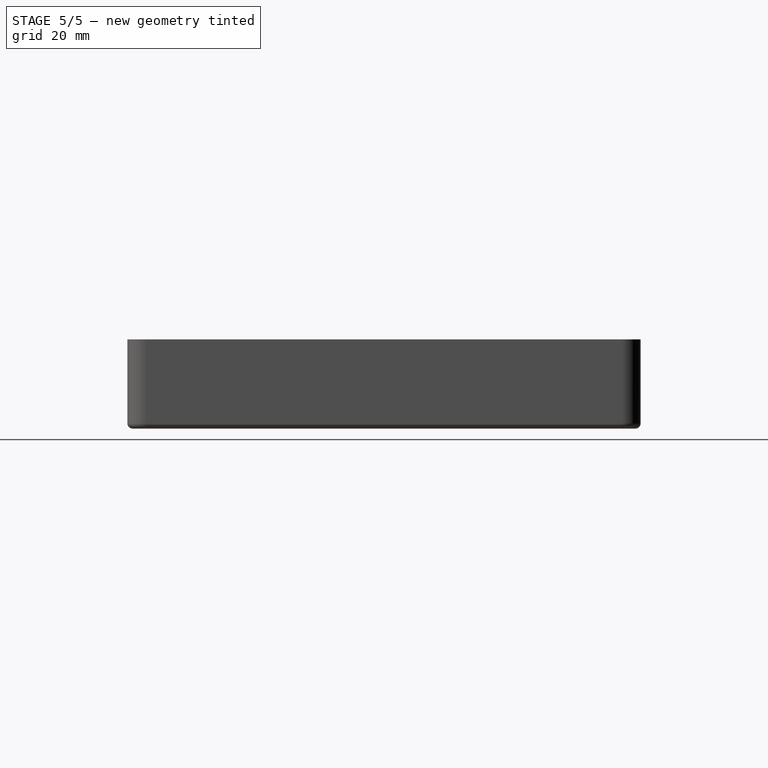
[diagram: stage 5 of 5 — right view after this stage's code; geometry added in this stage tinted green]
FEATURE [Sketcher::SketchObject] Sketch007  label="Lid Hole Sketch"
  ArcFitTolerance = 0
  AttachmentSupport = -> [MultiTransform001]
  FullyConstrained = true
  MakeInternals = false
  MapMode = 5
  Placement = pos=(0,0,1.5) rot=(0,0,1;0rad)
  expr: Constraints[0] = <<p>>.lid_screw_diameter
  expr: Constraints[1] = <<p>>.box_inner_width / 2 - <<p>>.lug_insert_diameter
  expr: Constraints[2] = <<p>>.box_inner_length / 2 - <<p>>.lug_insert_diameter
  sketch-geometry (1):
    g0: Circle CenterX=-42.1 CenterY=42.1 CenterZ=0 NormalX=0 NormalY=0 NormalZ=1 AngleXU=0 Radius=1.5
  constraints (3):
    c: Diameter(g0) = 3
    c: DistanceX(g0,g-1) = 42.1
    c: DistanceY(g-1,g0) = 42.1
FEATURE [PartDesign::Pocket] Pocket002  label="Lid Hole"
  BaseFeature = -> MultiTransform001
  Direction = (0,0,-1)
  Length = 1.5
  Length2 = 5
  Profile = -> Sketch007
  ReferenceAxis = -> Sketch007 [N_Axis]
  Suppressed = false
  Type = 0
  expr: Length = <<p>>.box_wall_thickness
FEATURE [PartDesign::Mirrored] Mirrored004
  MirrorPlane = -> Sketch007 [V_Axis]
  Suppressed = false
  TransformMode = 0
FEATURE [PartDesign::Mirrored] Mirrored005
  MirrorPlane = -> Sketch007 [H_Axis]
  Suppressed = false
  TransformMode = 0
FEATURE [PartDesign::MultiTransform] MultiTransform002  label="Lid Holes Mirror"
  BaseFeature = -> Pocket002
  Originals = -> [Pocket002]
  Suppressed = false
  TransformMode = 0
  Transformations = -> [Mirrored004,Mirrored005]
FEATURE [PartDesign::Fillet] Fillet001
  Base = -> MultiTransform002 [Edge15,Edge14,Edge12,Edge9,Edge3,Edge6,Edge11,Edge13]
  BaseFeature = -> MultiTransform002
  Radius = 1
  SupportTransform = false
  Suppressed = false
  UseAllEdges = false
  expr: Radius = <<p>>.face_fillet
FEATURE [PartDesign::Chamfer] Chamfer
  Angle = 45
  Base = -> Fillet001 [Edge40,Edge39,Edge37,Edge38]
  BaseFeature = -> Fillet001
  ChamferType = 0
  FlipDirection = false
  Size = 1.98
  Size2 = 1
  SupportTransform = false
  Suppressed = false
  UseAllEdges = false
  expr: Size = <<p>>.lid_screw_chamfer
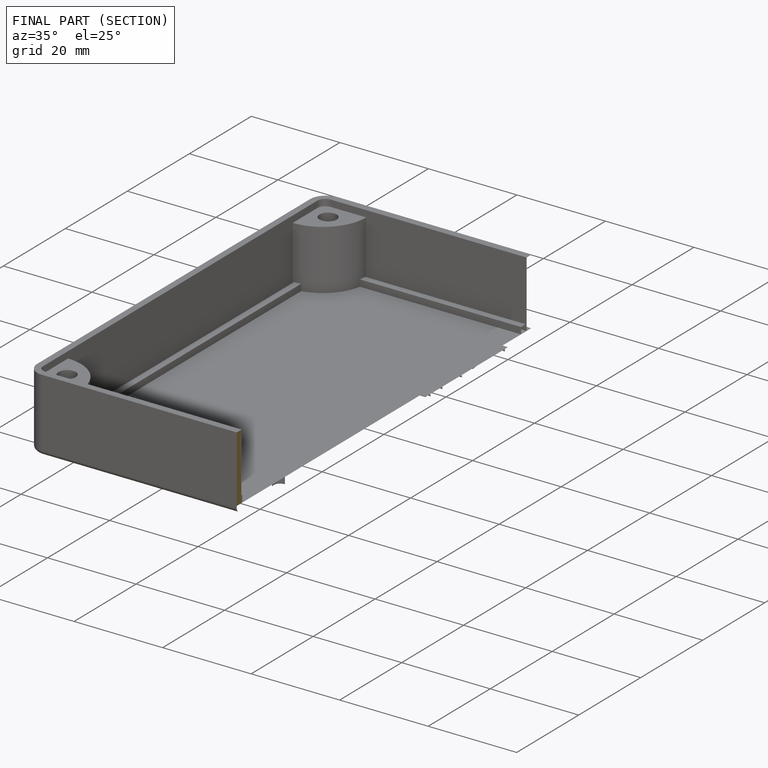
[diagram: finished part — half-section view (interior)]
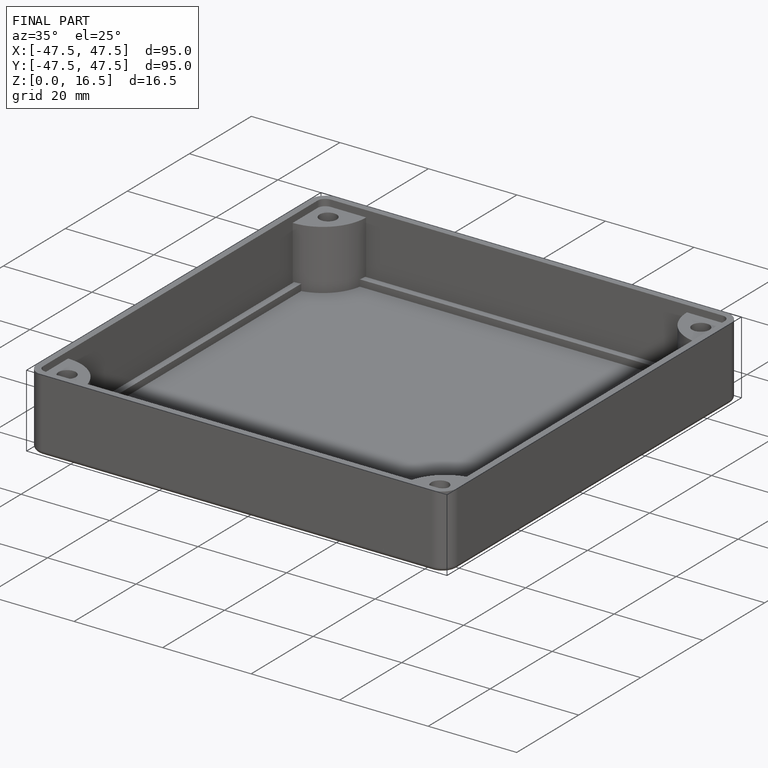
[diagram: finished part — iso view with bounding-box wireframe]
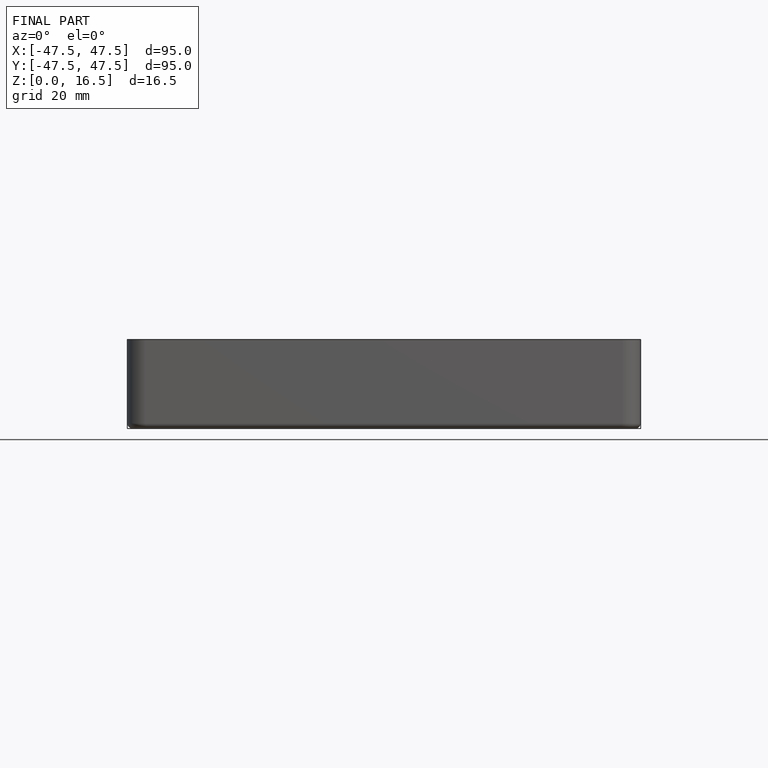
[diagram: finished part — front view with bounding-box wireframe]
